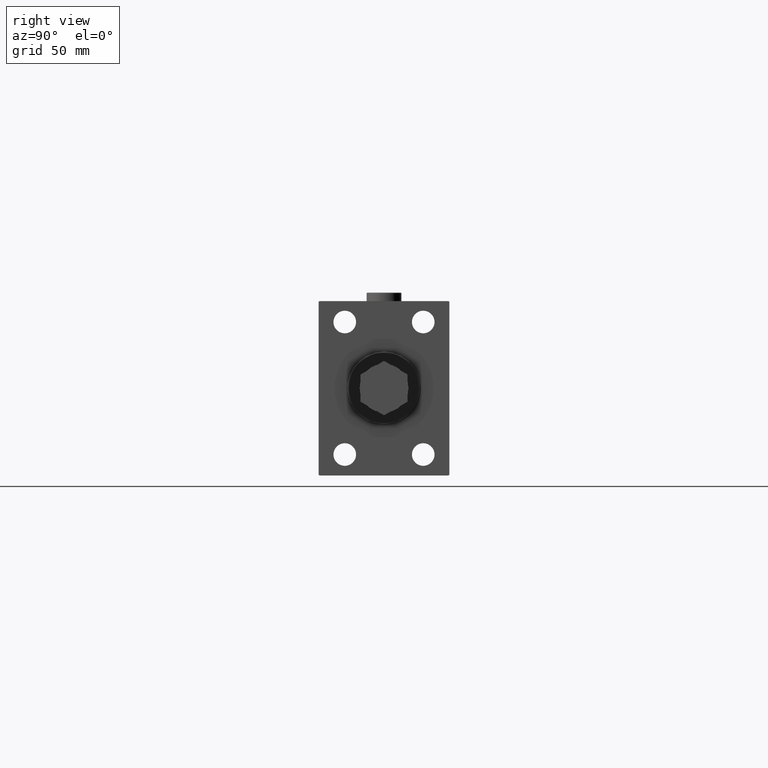
[diagram: clean part render]
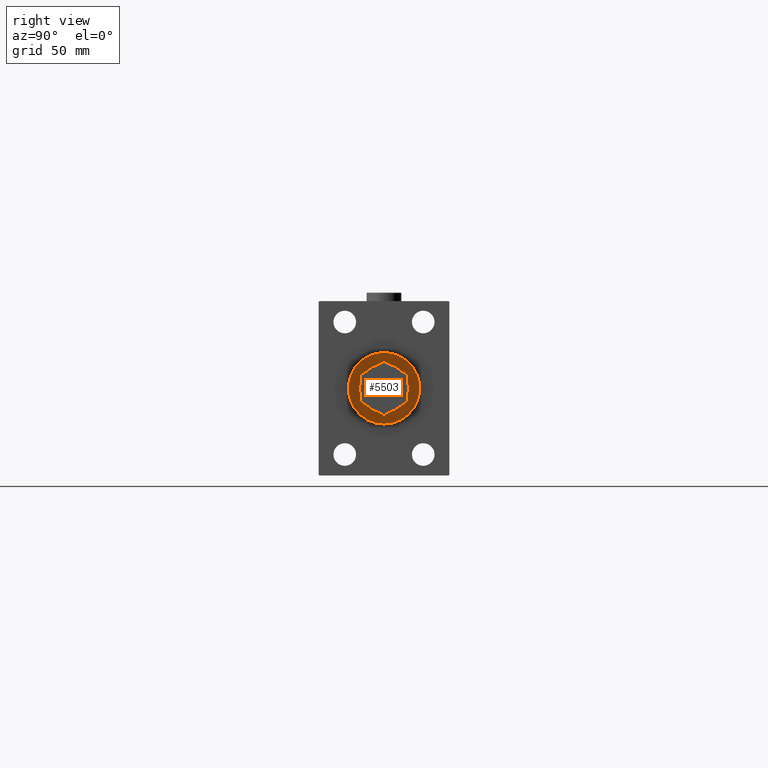
[diagram: same view with one face highlighted and labeled with its STEP entity id]
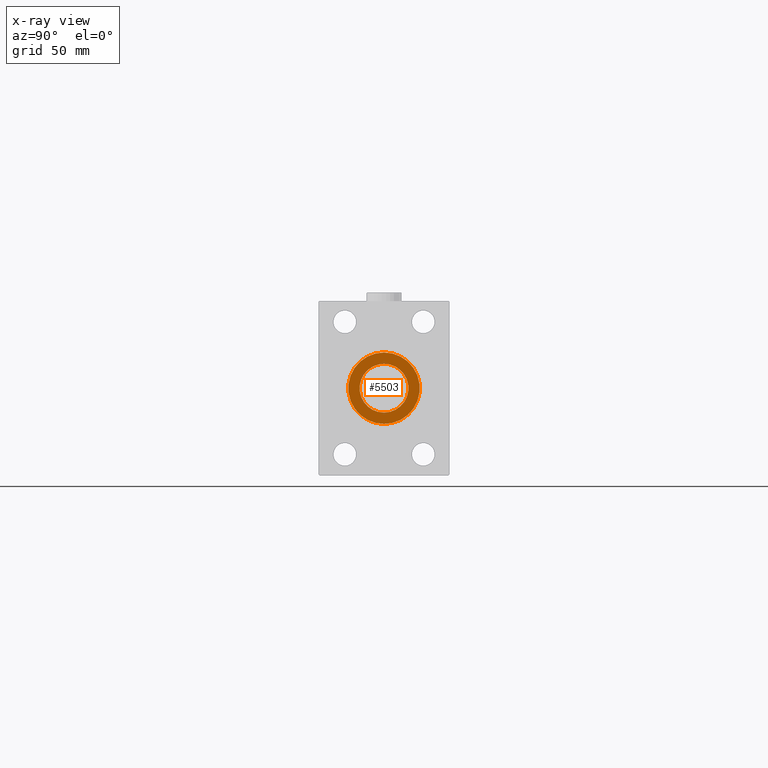
[diagram: x-ray of the same camera — body ghosted, the highlighted face saturated]
A machine part, right view. The second image highlights one B-rep face of the part: STEP entity #5503.
The next image is the same camera in x-ray: the body ghosted, the highlighted face saturated — about 5% of this face is hidden behind the body in this view.
In plain terms, the highlighted planar face has unit normal (1, 0, 0).
Its self-contained STEP definition (entity closure, byte-faithful):
#1689 = CARTESIAN_POINT ( 'NONE',  ( 171.1999999999999886, 0.000000000000000000, 0.000000000000000000 ) ) ;
#2160 = ORIENTED_EDGE ( 'NONE', *, *, #30864, .F. ) ;
#2319 = ORIENTED_EDGE ( 'NONE', *, *, #27325, .T. ) ;
#2375 = CARTESIAN_POINT ( 'NONE',  ( 171.1999999999999886, 0.000000000000000000, 0.000000000000000000 ) ) ;
#3474 = CARTESIAN_POINT ( 'NONE',  ( 171.1999999999999886, 0.000000000000000000, -20.50000000000000000 ) ) ;
#4707 = VERTEX_POINT ( 'NONE', #40123 ) ;
#5503 = ADVANCED_FACE ( 'NONE', ( #24394, #35921 ), #32246, .T. ) ;
#5776 = DIRECTION ( 'NONE',  ( 1.000000000000000000, 0.000000000000000000, 0.000000000000000000 ) ) ;
#5834 = DIRECTION ( 'NONE',  ( 0.000000000000000000, 0.000000000000000000, -1.000000000000000000 ) ) ;
#7021 = CIRCLE ( 'NONE', #43021, 20.50000000000000000 ) ;
#7452 = CIRCLE ( 'NONE', #36407, 20.50000000000000000 ) ;
#12432 = VERTEX_POINT ( 'NONE', #3474 ) ;
#12557 = CARTESIAN_POINT ( 'NONE',  ( 171.1999999999999886, 0.000000000000000000, 0.000000000000000000 ) ) ;
#13605 = ORIENTED_EDGE ( 'NONE', *, *, #41476, .T. ) ;
#13812 = AXIS2_PLACEMENT_3D ( 'NONE', #2375, #44025, #36662 ) ;
#19273 = AXIS2_PLACEMENT_3D ( 'NONE', #12557, #27501, #36062 ) ;
#20729 = DIRECTION ( 'NONE',  ( 0.000000000000000000, 0.000000000000000000, -1.000000000000000000 ) ) ;
#20831 = CARTESIAN_POINT ( 'NONE',  ( 171.1999999999999886, 0.000000000000000000, -14.00000000000000178 ) ) ;
#22430 = DIRECTION ( 'NONE',  ( 0.000000000000000000, 0.000000000000000000, -1.000000000000000000 ) ) ;
#23830 = CARTESIAN_POINT ( 'NONE',  ( 171.1999999999999886, 1.714505518806294835E-15, 14.00000000000000178 ) ) ;
#24394 = FACE_BOUND ( 'NONE', #44322, .T. ) ;
#27079 = CARTESIAN_POINT ( 'NONE',  ( 171.1999999999999886, 0.000000000000000000, 0.000000000000000000 ) ) ;
#27325 = EDGE_CURVE ( 'NONE', #12432, #4707, #7452, .T. ) ;
#27501 = DIRECTION ( 'NONE',  ( 1.000000000000000000, 0.000000000000000000, 0.000000000000000000 ) ) ;
#29951 = EDGE_CURVE ( 'NONE', #32195, #40274, #33334, .T. ) ;
#30468 = EDGE_LOOP ( 'NONE', ( #2319, #13605 ) ) ;
#30864 = EDGE_CURVE ( 'NONE', #40274, #32195, #33374, .T. ) ;
#32195 = VERTEX_POINT ( 'NONE', #23830 ) ;
#32246 = PLANE ( 'NONE',  #40459 ) ;
#33334 = CIRCLE ( 'NONE', #19273, 14.00000000000000178 ) ;
#33374 = CIRCLE ( 'NONE', #13812, 14.00000000000000178 ) ;
#35921 = FACE_OUTER_BOUND ( 'NONE', #30468, .T. ) ;
#36062 = DIRECTION ( 'NONE',  ( 0.000000000000000000, 0.000000000000000000, -1.000000000000000000 ) ) ;
#36407 = AXIS2_PLACEMENT_3D ( 'NONE', #27079, #44749, #22430 ) ;
#36662 = DIRECTION ( 'NONE',  ( 0.000000000000000000, 0.000000000000000000, -1.000000000000000000 ) ) ;
#40123 = CARTESIAN_POINT ( 'NONE',  ( 171.1999999999999886, 2.541142108230757874E-15, 20.50000000000000000 ) ) ;
#40274 = VERTEX_POINT ( 'NONE', #20831 ) ;
#40459 = AXIS2_PLACEMENT_3D ( 'NONE', #42544, #5776, #20729 ) ;
#41476 = EDGE_CURVE ( 'NONE', #4707, #12432, #7021, .T. ) ;
#42544 = CARTESIAN_POINT ( 'NONE',  ( 171.1999999999999886, 0.000000000000000000, 0.000000000000000000 ) ) ;
#42878 = ORIENTED_EDGE ( 'NONE', *, *, #29951, .F. ) ;
#43021 = AXIS2_PLACEMENT_3D ( 'NONE', #1689, #47485, #5834 ) ;
#44025 = DIRECTION ( 'NONE',  ( 1.000000000000000000, 0.000000000000000000, 0.000000000000000000 ) ) ;
#44322 = EDGE_LOOP ( 'NONE', ( #2160, #42878 ) ) ;
#44749 = DIRECTION ( 'NONE',  ( 1.000000000000000000, 0.000000000000000000, 0.000000000000000000 ) ) ;
#47485 = DIRECTION ( 'NONE',  ( 1.000000000000000000, 0.000000000000000000, 0.000000000000000000 ) ) ;